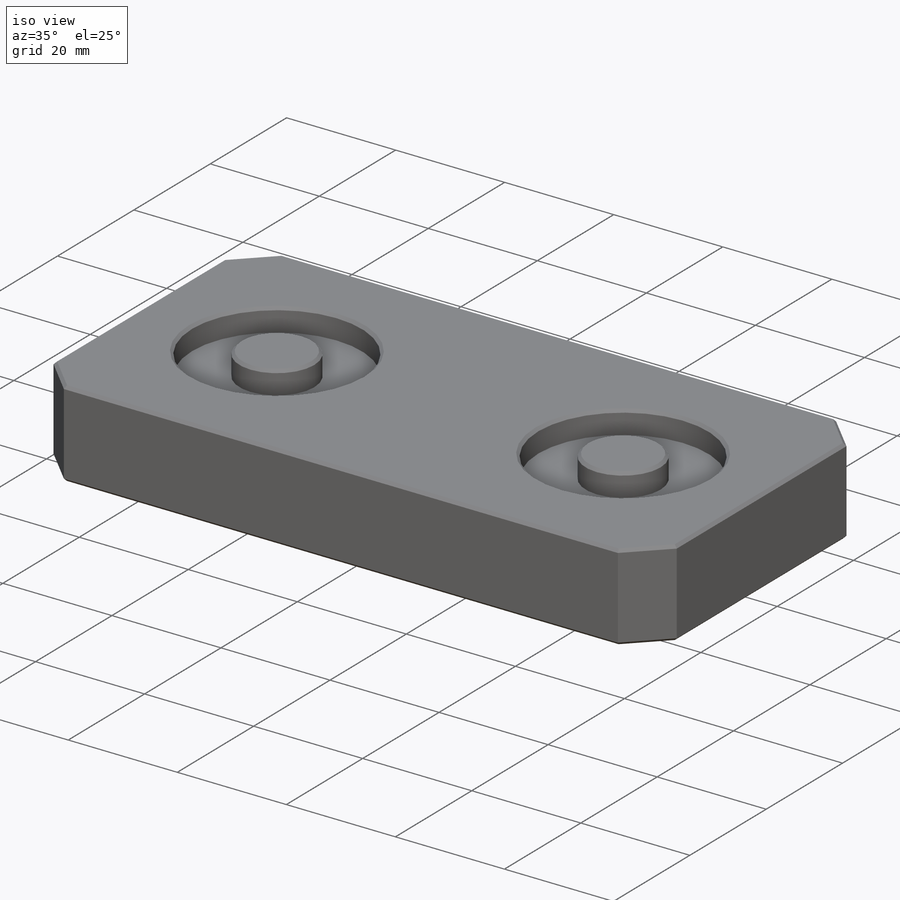
[diagram: iso view]
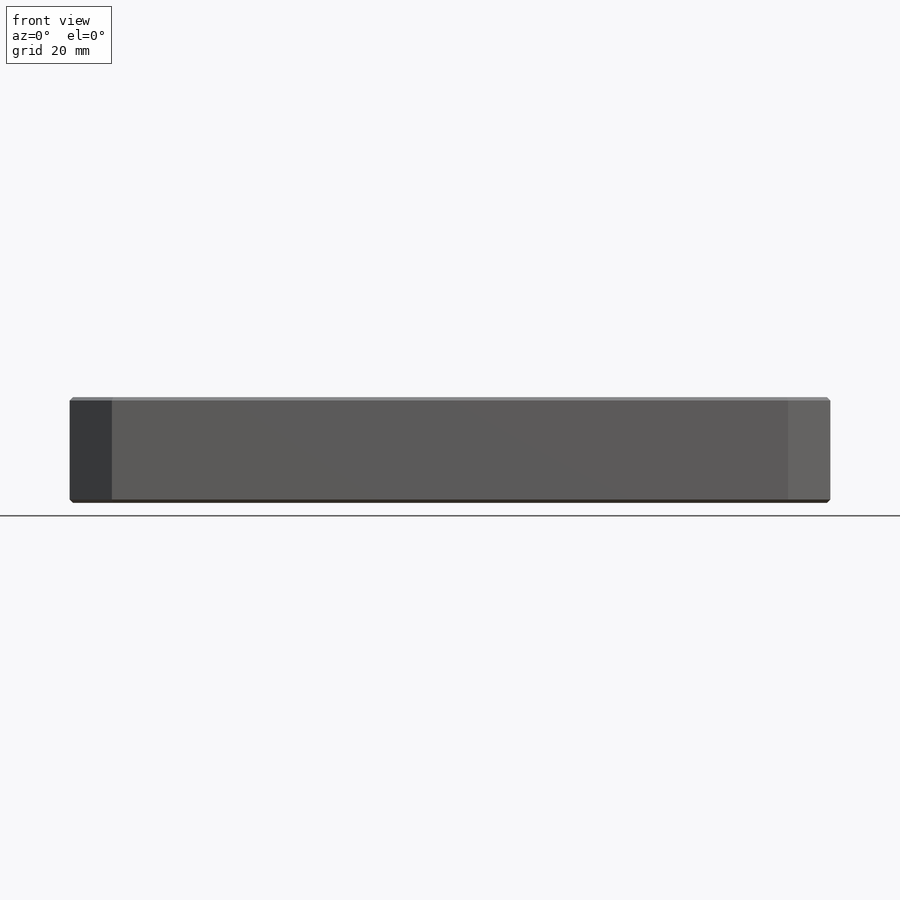
[diagram: front view]
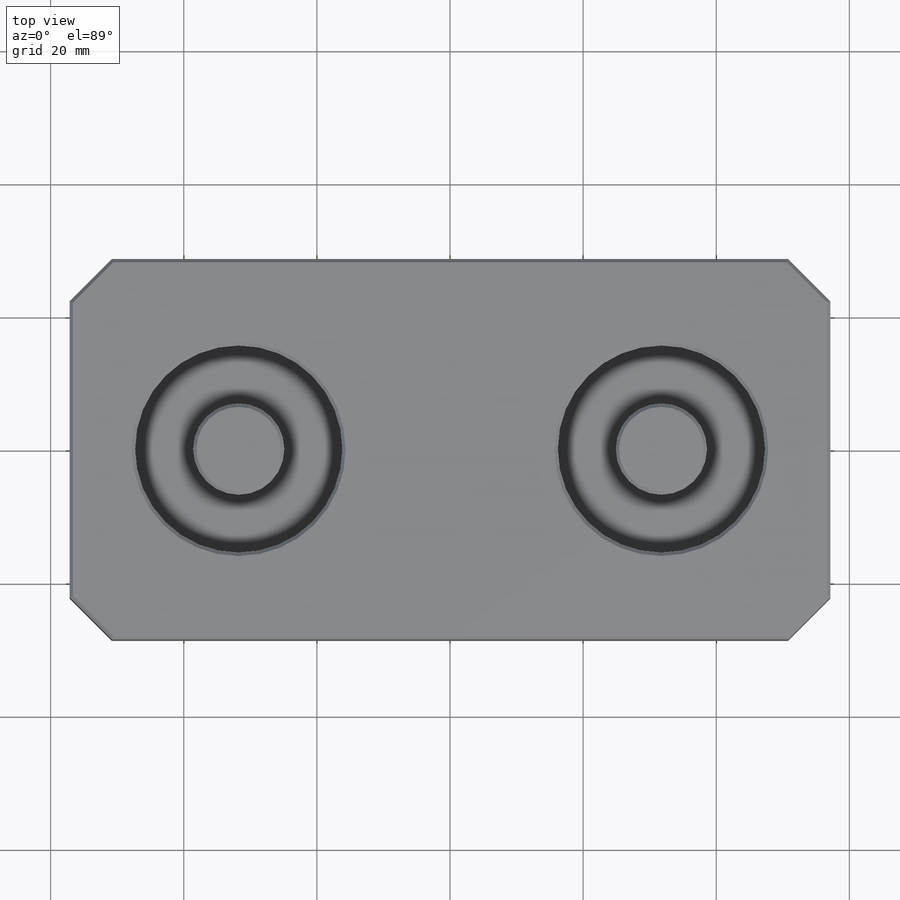
[diagram: top view]
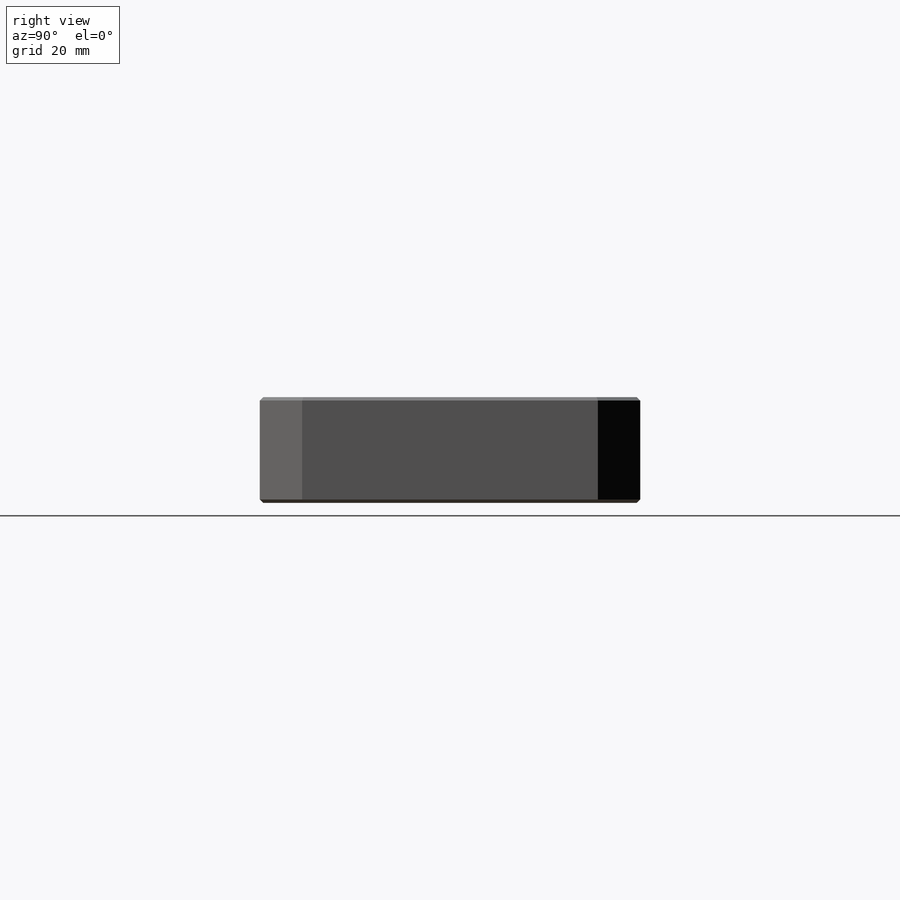
[diagram: right view]
SOLIDWORKS PART (.sldprt)
format: sldprt  version: not decoded by parser v0  size: 279,552 bytes
history: native  units: mm
features: sketch x4, extrude x2, cut_extrude x2, material x1, chamfer x1 + 1 further entry (+13 scaffold rows collapsed)
feature tree (24):
  scaffold x13  (default folders/planes/origin — collapsed)
  material  "17-4 PH SSTL, H 1150"
  "Origin"  ID=-1
  sketch  "Sketch1"  dims[D2=44.45mm D1=57.15mm D3=30.48mm D4=30.48mm D5=114.3mm]
  extrude  "Extrude1"  Depth=15.875mm
  sketch  "Sketch3"  dims[D1=6.35mm]
  cut_extrude  "Cut-Extrude1"  [1 undecoded]
  sketch  "Sketch4"  dims[D3=31.115mm D2=63.5mm D1=0.0mm]
  cut_extrude  "Extrude7"  Depth=4.191mm
  sketch  "Sketch6"  dims[D1=13.716mm]
  extrude  "Extrude8"  [1 undecoded]
  chamfer  "Chamfer1"  Distance=0.508mm Angle=45deg
decode coverage: 7 of 9 modeling features carry decoded parameters; 1 rows unclassified (native names shown)
note: 2 parameter values undecoded
note: suppression state not decoded; provenance and decode notes live in map.json
